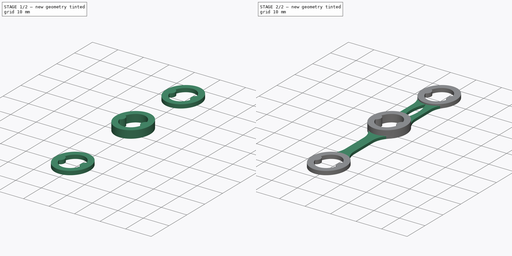
[diagram: build sequence overview — one tinted view per stage of 2, left to right]
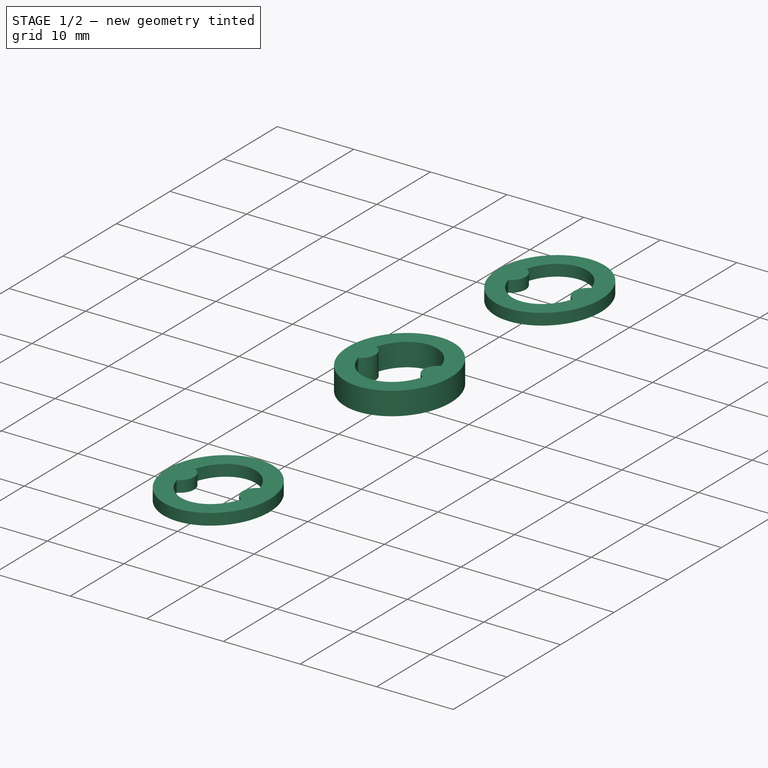
[diagram: stage 1 of 2 — iso view after this stage's code; geometry added in this stage tinted green]
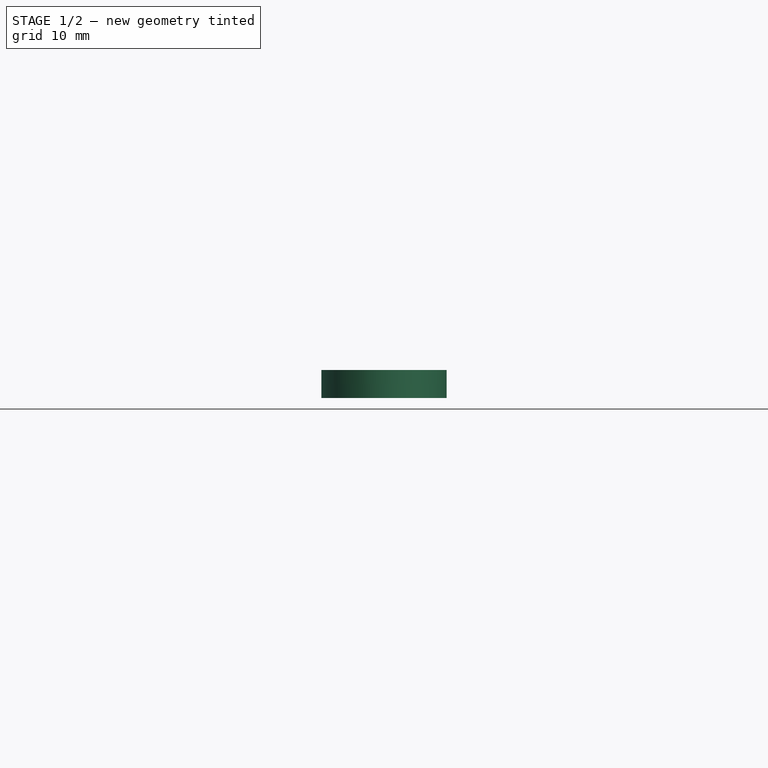
[diagram: stage 1 of 2 — front view after this stage's code; geometry added in this stage tinted green]
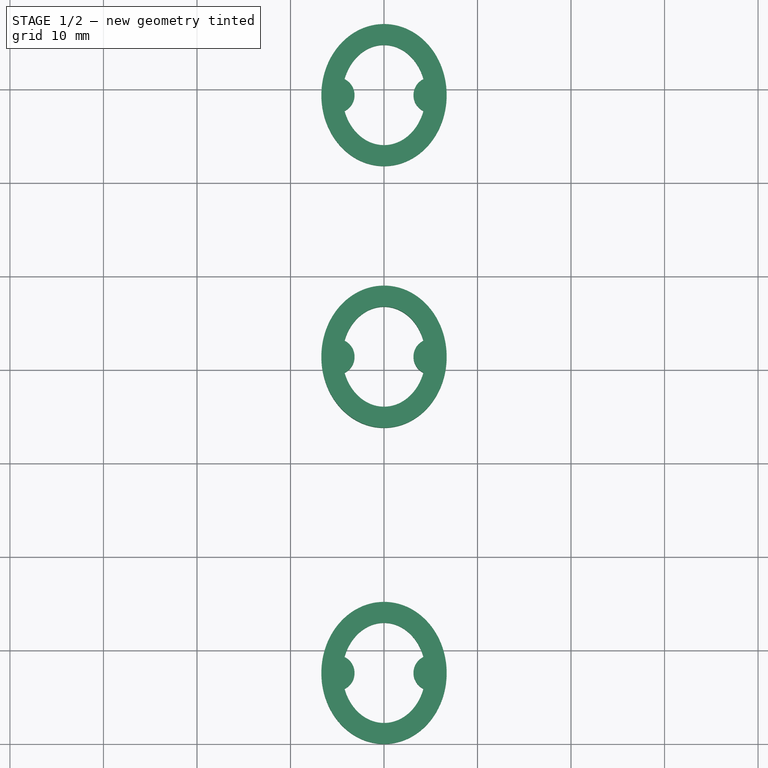
[diagram: stage 1 of 2 — top view after this stage's code; geometry added in this stage tinted green]
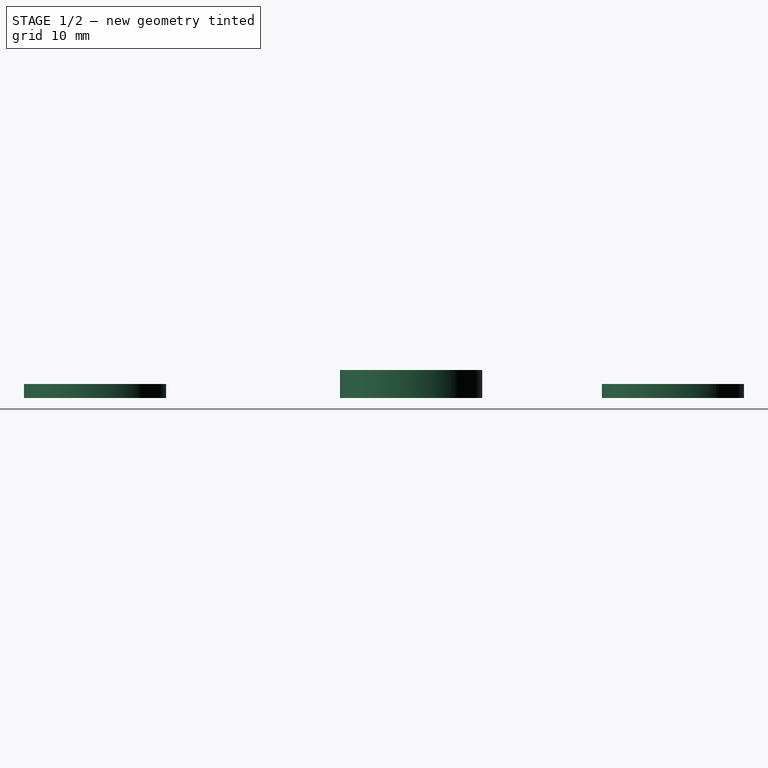
[diagram: stage 1 of 2 — right view after this stage's code; geometry added in this stage tinted green]
FCSTD DOCUMENT  (FreeCAD 1.0RUnknown)
Label: flip-stop-v2
License: All rights reserved
LicenseURL: https://en.wikipedia.org/wiki/All_rights_reserved
objects: PartDesign::Pad×3, App::VarSet×3, Sketcher::SketchObject×1, PartDesign::Body×1
note: 12 computed .brp shape members not serialized (recipe doc carries the construction recipe); baked Part::Feature solids carry a one-line shape summary decoded from their .brp

FEATURE [Sketcher::SketchObject] Sketch
  ArcFitTolerance = 1e-06
  AttachmentSupport = -> [XY_Plane]
  FullyConstrained = true
  MakeInternals = false
  MapMode = 5
  expr: Constraints[71] = VarSet.DoubleBandLength
  expr: Constraints[89] = VarSet.SingleBandLength
  sketch-geometry (94):
    g0: ArcOfEllipse CenterX=0 CenterY=69.4 CenterZ=0 NormalX=0 NormalY=0 NormalZ=1 MajorRadius=5.35 MinorRadius=4.45 AngleXU=-1.5708 StartAngle=5.03728 EndAngle=7.52909
    g1: LineSegment [constr] StartX=0 StartY=64.05 StartZ=0 EndX=0 EndY=74.75 EndZ=0
    g2: LineSegment [constr] StartX=4.45 StartY=69.4 StartZ=0 EndX=-4.45 EndY=69.4 EndZ=0
    g3: GeomPoint [constr] X=0 Y=72.3698 Z=0
    g4: ArcOfEllipse CenterX=0 CenterY=41.4 CenterZ=0 NormalX=0 NormalY=0 NormalZ=1 MajorRadius=5.35 MinorRadius=4.45 AngleXU=-1.5708 StartAngle=5.03728 EndAngle=7.52909
    g5: LineSegment [constr] StartX=0 StartY=36.05 StartZ=0 EndX=0 EndY=46.75 EndZ=0
    g6: LineSegment [constr] StartX=4.45 StartY=41.4 StartZ=0 EndX=-4.45 EndY=41.4 EndZ=0
    g7: GeomPoint [constr] X=0 Y=38.4302 Z=0
    g8: GeomPoint [constr] X=0 Y=44.3698 Z=0
    g9: ArcOfEllipse CenterX=0 CenterY=7.6 CenterZ=0 NormalX=0 NormalY=0 NormalZ=1 MajorRadius=5.35 MinorRadius=4.45 AngleXU=-1.5708 StartAngle=5.03728 EndAngle=7.52909
    g10: LineSegment [constr] StartX=0 StartY=2.25 StartZ=0 EndX=0 EndY=12.95 EndZ=0
    g11: LineSegment [constr] StartX=4.45 StartY=7.6 StartZ=0 EndX=-4.45 EndY=7.6 EndZ=0
    g12: GeomPoint [constr] X=0 Y=4.63015 Z=0
    g13: GeomPoint [constr] X=0 Y=10.5698 Z=0
    g14: Ellipse [constr] CenterX=0 CenterY=7.6 CenterZ=0 NormalX=0 NormalY=0 NormalZ=1 MajorRadius=7.6 MinorRadius=6.7 AngleXU=-1.5708
    g15: LineSegment [constr] StartX=1e-16 StartY=-9e-16 StartZ=0 EndX=-1e-16 EndY=15.2 EndZ=0
    g16: LineSegment [constr] StartX=6.7 StartY=7.6 StartZ=0 EndX=-6.7 EndY=7.6 EndZ=0
    g17: GeomPoint [constr] X=0 Y=4.01252 Z=0
    g18: GeomPoint [constr] X=0 Y=11.1875 Z=0
    g19: LineSegment [constr] StartX=-4.45 StartY=7.6 StartZ=0 EndX=-6.7 EndY=7.6 EndZ=0
    g20: LineSegment [constr] StartX=0 StartY=2.25 StartZ=0 EndX=0 EndY=0 EndZ=0
    g21: Ellipse [constr] CenterX=0 CenterY=41.4 CenterZ=0 NormalX=0 NormalY=0 NormalZ=1 MajorRadius=7.6 MinorRadius=6.7 AngleXU=-1.5708
    g22: LineSegment [constr] StartX=0 StartY=33.8 StartZ=0 EndX=-1.8e-15 EndY=49 EndZ=0
    g23: LineSegment [constr] StartX=6.7 StartY=41.4 StartZ=0 EndX=-6.7 EndY=41.4 EndZ=0
    g24: GeomPoint [constr] X=0 Y=37.8125 Z=0
    g25: GeomPoint [constr] X=0 Y=44.9875 Z=0
    g26: Ellipse [constr] CenterX=0 CenterY=69.4 CenterZ=0 NormalX=0 NormalY=0 NormalZ=1 MajorRadius=7.6 MinorRadius=6.7 AngleXU=-1.5708
    g27: LineSegment [constr] StartX=0 StartY=61.8 StartZ=0 EndX=0 EndY=77 EndZ=0
    g28: LineSegment [constr] StartX=6.7 StartY=69.4 StartZ=0 EndX=-6.7 EndY=69.4 EndZ=0
    g29: GeomPoint [constr] X=0 Y=65.8125 Z=0
    g30: GeomPoint [constr] X=0 Y=72.9875 Z=0
    g31: ArcOfCircle CenterX=-10 CenterY=19.3926 CenterZ=0 NormalX=0 NormalY=0 NormalZ=1 AngleXU=0 Radius=8.25 StartAngle=5.4736 EndAngle=6.28319
    g32: ArcOfCircle CenterX=-10 CenterY=29.6074 CenterZ=0 NormalX=0 NormalY=0 NormalZ=1 AngleXU=0 Radius=8.25 StartAngle=0 EndAngle=0.809587
    g33: LineSegment StartX=-1.75 StartY=29.6074 StartZ=0 EndX=-1.75 EndY=19.3926 EndZ=0
    g34: ArcOfCircle CenterX=10 CenterY=29.6074 CenterZ=0 NormalX=0 NormalY=0 NormalZ=1 AngleXU=0 Radius=8.25 StartAngle=2.33201 EndAngle=3.14159
    g35: ArcOfCircle CenterX=10 CenterY=19.3926 CenterZ=0 NormalX=0 NormalY=0 NormalZ=1 AngleXU=0 Radius=8.25 StartAngle=3.14159 EndAngle=3.95118
    g36: LineSegment StartX=1.75 StartY=29.6074 StartZ=0 EndX=1.75 EndY=19.3926 EndZ=0
    g37: ArcOfCircle CenterX=13.9286 CenterY=55.4 CenterZ=0 NormalX=0 NormalY=0 NormalZ=1 AngleXU=0 Radius=15.3286 StartAngle=2.71088 EndAngle=3.57231
    g38: ArcOfCircle CenterX=-13.9286 CenterY=55.4 CenterZ=0 NormalX=0 NormalY=0 NormalZ=1 AngleXU=0 Radius=15.3286 StartAngle=5.85247 EndAngle=6.7139
    g39: ArcOfCircle CenterX=-11.75 CenterY=59.5882 CenterZ=0 NormalX=0 NormalY=0 NormalZ=1 AngleXU=0 Radius=8.25 StartAngle=-9e-16 EndAngle=0.638506
    g40: ArcOfCircle CenterX=-11.75 CenterY=51.2118 CenterZ=0 NormalX=0 NormalY=0 NormalZ=1 AngleXU=0 Radius=8.25 StartAngle=5.64468 EndAngle=6.28319
    g41: LineSegment StartX=-3.5 StartY=59.5882 StartZ=0 EndX=-3.5 EndY=51.2118 EndZ=0
    g42: ArcOfCircle CenterX=11.75 CenterY=59.5882 CenterZ=0 NormalX=0 NormalY=0 NormalZ=1 AngleXU=0 Radius=8.25 StartAngle=2.50309 EndAngle=3.14159
    g43: ArcOfCircle CenterX=11.75 CenterY=51.2118 CenterZ=0 NormalX=0 NormalY=0 NormalZ=1 AngleXU=0 Radius=8.25 StartAngle=3.14159 EndAngle=3.7801
    g44: LineSegment StartX=3.5 StartY=59.5882 StartZ=0 EndX=3.5 EndY=51.2118 EndZ=0
    g45: ArcOfCircle CenterX=5.05 CenterY=69.4 CenterZ=0 NormalX=0 NormalY=0 NormalZ=1 AngleXU=0 Radius=1.9 StartAngle=2.02452 EndAngle=4.25866
    g46: ArcOfCircle CenterX=-5.05 CenterY=7.6 CenterZ=0 NormalX=0 NormalY=0 NormalZ=1 AngleXU=0 Radius=1.9 StartAngle=5.16611 EndAngle=7.40026
    g47: ArcOfCircle CenterX=5.05 CenterY=7.6 CenterZ=0 NormalX=0 NormalY=0 NormalZ=1 AngleXU=0 Radius=1.9 StartAngle=2.02452 EndAngle=4.25866
    g48: ArcOfCircle CenterX=5.05 CenterY=41.4 CenterZ=0 NormalX=0 NormalY=0 NormalZ=1 AngleXU=0 Radius=1.9 StartAngle=2.02452 EndAngle=4.25866
    g49: ArcOfCircle CenterX=-5.05 CenterY=41.4 CenterZ=0 NormalX=0 NormalY=0 NormalZ=1 AngleXU=0 Radius=1.9 StartAngle=5.16611 EndAngle=7.40026
    g50: ArcOfCircle CenterX=-5.05 CenterY=69.4 CenterZ=0 NormalX=0 NormalY=0 NormalZ=1 AngleXU=0 Radius=1.9 StartAngle=5.16611 EndAngle=7.40026
    g51: ArcOfEllipse CenterX=0 CenterY=7.6 CenterZ=0 NormalX=0 NormalY=0 NormalZ=1 MajorRadius=5.35 MinorRadius=4.45 AngleXU=-1.5708 StartAngle=1.89569 EndAngle=4.3875
    g52: ArcOfEllipse CenterX=0 CenterY=41.4 CenterZ=0 NormalX=0 NormalY=0 NormalZ=1 MajorRadius=5.35 MinorRadius=4.45 AngleXU=-1.5708 StartAngle=1.89569 EndAngle=4.3875
    g53: ArcOfEllipse CenterX=0 CenterY=69.4 CenterZ=0 NormalX=0 NormalY=0 NormalZ=1 MajorRadius=5.35 MinorRadius=4.45 AngleXU=-1.5708 StartAngle=1.89569 EndAngle=4.3875
    g54: ArcOfEllipse CenterX=0 CenterY=69.4 CenterZ=0 NormalX=0 NormalY=0 NormalZ=1 MajorRadius=7.6 MinorRadius=6.7 AngleXU=1.5708 StartAngle=2.27058 EndAngle=4.0126
    g55: LineSegment [constr] StartX=-1.4e-14 StartY=77 StartZ=0 EndX=1.4e-14 EndY=61.8 EndZ=0
    g56: LineSegment [constr] StartX=-6.7 StartY=69.4 StartZ=0 EndX=6.7 EndY=69.4 EndZ=0
    g57: GeomPoint [constr] X=-6.6e-15 Y=72.9875 Z=0
    g58: GeomPoint [constr] X=6.6e-15 Y=65.8125 Z=0
    g59: ArcOfEllipse CenterX=0 CenterY=69.4 CenterZ=0 NormalX=0 NormalY=0 NormalZ=1 MajorRadius=7.6 MinorRadius=6.7 AngleXU=1.5708 StartAngle=4.0126 EndAngle=8.55377
    g60: LineSegment [constr] StartX=-2.64e-14 StartY=77 StartZ=0 EndX=2.64e-14 EndY=61.8 EndZ=0
    g61: LineSegment [constr] StartX=-6.7 StartY=69.4 StartZ=0 EndX=6.7 EndY=69.4 EndZ=0
    g62: GeomPoint [constr] X=-1.25e-14 Y=72.9875 Z=0
    g63: GeomPoint [constr] X=1.25e-14 Y=65.8125 Z=0
    g64: ArcOfEllipse CenterX=0 CenterY=41.4 CenterZ=0 NormalX=0 NormalY=0 NormalZ=1 MajorRadius=7.6 MinorRadius=6.7 AngleXU=1.5708 StartAngle=5.41218 EndAngle=7.15419
    g65: LineSegment [constr] StartX=-1.24e-14 StartY=49 StartZ=0 EndX=1.24e-14 EndY=33.8 EndZ=0
    g66: LineSegment [constr] StartX=-6.7 StartY=41.4 StartZ=0 EndX=6.7 EndY=41.4 EndZ=0
    g67: GeomPoint [constr] X=-5.9e-15 Y=44.9875 Z=0
    g68: GeomPoint [constr] X=5.9e-15 Y=37.8125 Z=0
    g69: ArcOfEllipse CenterX=0 CenterY=7.6 CenterZ=0 NormalX=0 NormalY=0 NormalZ=1 MajorRadius=7.6 MinorRadius=6.7 AngleXU=1.5708 StartAngle=0.698618 EndAngle=5.58457
    g70: LineSegment [constr] StartX=-2.3e-15 StartY=15.2 StartZ=0 EndX=2.3e-15 EndY=0 EndZ=0
    g71: LineSegment [constr] StartX=-6.7 StartY=7.6 StartZ=0 EndX=6.7 EndY=7.6 EndZ=0
    g72: GeomPoint [constr] X=-1.1e-15 Y=11.1875 Z=0
    g73: GeomPoint [constr] X=1.1e-15 Y=4.01252 Z=0
    g74: ArcOfEllipse CenterX=0 CenterY=41.4 CenterZ=0 NormalX=0 NormalY=0 NormalZ=1 MajorRadius=7.6 MinorRadius=6.7 AngleXU=1.5708 StartAngle=0.871008 EndAngle=2.44297
    g75: LineSegment [constr] StartX=1.65e-14 StartY=49 StartZ=0 EndX=-1.65e-14 EndY=33.8 EndZ=0
    g76: LineSegment [constr] StartX=-6.7 StartY=41.4 StartZ=0 EndX=6.7 EndY=41.4 EndZ=0
    g77: GeomPoint [constr] X=7.8e-15 Y=44.9875 Z=0
    g78: GeomPoint [constr] X=-7.8e-15 Y=37.8125 Z=0
    g79: ArcOfEllipse CenterX=0 CenterY=41.4 CenterZ=0 NormalX=0 NormalY=0 NormalZ=1 MajorRadius=7.6 MinorRadius=6.7 AngleXU=-1.5708 StartAngle=0.698615 EndAngle=2.27058
    g80: LineSegment [constr] StartX=-3e-16 StartY=33.8 StartZ=0 EndX=3e-16 EndY=49 EndZ=0
    g81: LineSegment [constr] StartX=6.7 StartY=41.4 StartZ=0 EndX=-6.7 EndY=41.4 EndZ=0
    g82: GeomPoint [constr] X=-1e-16 Y=37.8125 Z=0
    g83: GeomPoint [constr] X=1e-16 Y=44.9875 Z=0
    g84: ArcOfEllipse CenterX=0 CenterY=41.4 CenterZ=0 NormalX=0 NormalY=0 NormalZ=1 MajorRadius=7.6 MinorRadius=6.7 AngleXU=1.5708 StartAngle=2.44297 EndAngle=3.84021
    g85: LineSegment [constr] StartX=2.34e-14 StartY=49 StartZ=0 EndX=-2.34e-14 EndY=33.8 EndZ=0
    g86: LineSegment [constr] StartX=-6.7 StartY=41.4 StartZ=0 EndX=6.7 EndY=41.4 EndZ=0
    g87: GeomPoint [constr] X=1.1e-14 Y=44.9875 Z=0
    g88: GeomPoint [constr] X=-1.1e-14 Y=37.8125 Z=0
    g89: ArcOfEllipse CenterX=0 CenterY=7.6 CenterZ=0 NormalX=0 NormalY=0 NormalZ=1 MajorRadius=7.6 MinorRadius=6.7 AngleXU=1.5708 StartAngle=5.58457 EndAngle=6.9818
    g90: LineSegment [constr] StartX=4.7e-15 StartY=15.2 StartZ=0 EndX=-4.7e-15 EndY=-1.8e-15 EndZ=0
    g91: LineSegment [constr] StartX=-6.7 StartY=7.6 StartZ=0 EndX=6.7 EndY=7.6 EndZ=0
    g92: GeomPoint [constr] X=2.2e-15 Y=11.1875 Z=0
    g93: GeomPoint [constr] X=-2.2e-15 Y=4.01252 Z=0
  constraints (158):
    c: InternalAlignment(g1,g0)
    c: InternalAlignment(g2,g0)
    c: InternalAlignment(g3,g0)
    c: InternalAlignment(g5-g8 -> g4) x4
    c: InternalAlignment(g10-g13 -> g9) x4
    c: Distance(g11,g11) = 8.9
    c: DistanceY(g10,g10) = 10.7
    c: Equal(g0,g9)
    c: PointOnObject(g4,g-2)
    c: PointOnObject(g9,g-2)
    c: Equal(g9,g4)
    c: PointOnObject(g13,g-2)
    c: PointOnObject(g8,g-2)
    c: PointOnObject(g3,g-2)
    c: InternalAlignment(g15-g18 -> g14) x4
    c: PointOnObject(g-1,g14)
    c: Coincident(g14,g9)
    c: Coincident(g19,g11)
    c: Coincident(g19,g16)
    c: Horizontal(g19)
    c: Distance(g19,g19) = 2.25
    c: Coincident(g20,g10)
    c: Coincident(g20,g-1)
    c: Equal(g20,g19)
    c: InternalAlignment(g22-g25 -> g21) x4
    c: Equal(g21,g14)
    c: Coincident(g21,g4)
    c: PointOnObject(g22,g-2)
    c: InternalAlignment(g27-g30 -> g26) x4
    c: Equal(g14,g26)
    c: PointOnObject(g27,g-2)
    c: PointOnObject(g0,g-2)
    c: Coincident(g26,g0)
    c: Vertical(g33)
    c: Equal(g32,g31)
    c: PointOnObject(g34,g21)
    c: PointOnObject(g35,g14)
    c: Tangent(g33,g31) = 1.5708
    c: Tangent(g33,g32) = 1.5708
    c: Coincident(g36,g34)
    c: Equal(g32,g34)
    c: Equal(g31,g35)
    c: Equal(g33,g36)
    c: Tangent(g34,g36,g34) = -1.5708
    c: Tangent(g36,g35) = -1.5708
    c: Vertical(g36)
    c: Horizontal(g33,g34)
    c: Horizontal(g31,g35)
    c: Radius(g31) = 8.25
    c: Tangent(g31,g14) = 1.5708
    c: Tangent(g32,g21) = 1.5708
    c: Coincident(g37,g27)
    c: Coincident(g37,g22)
    c: Coincident(g38,g27)
    c: Coincident(g38,g22)
    c: Equal(g37,g38)
    c: DistanceY(g22,g27) = 12.8
    c: Vertical(g41)
    c: Tangent(g39,g26) = 1.5708
    c: Tangent(g40,g21) = 1.5708
    c: Tangent(g41,g39) = 1.5708
    c: Equal(g39,g40)
    c: Tangent(g41,g40) = 1.5708
    c: Equal(g40,g31)
    c: Distance(g37,g41) = 2.1
    c: DistanceY(g20,g27) = 77  'total length'
    c: Vertical(g44)
    c: Equal(g42,g39)
    c: Tangent(g42,g26) = 1.5708
    c: Tangent(g43,g21) = 1.5708
    c: Tangent(g44,g42) = -1.5708
    c: Tangent(g44,g43) = -1.5708
    c: Symmetric(g43,g40,g-2)
    c: Distance(g-2,g41) = 3.5
    c: DistanceY(g15,g22) = 18.6
    c: Distance(g34,g32) = 3.5
    c: PointOnObject(g45,g53)
    c: PointOnObject(g45,g28)
    c: Radius(g46) = 1.9
    c: Symmetric(g46,g46,g11)
    c: Distance(g11,g46) = 1.3
    c: PointOnObject(g48,g52)
    c: Equal(g46,g47)
    c: PointOnObject(g47,g16)
    c: PointOnObject(g48,g23)
    c: PointOnObject(g49,g23)
    c: Equal(g49,g46)
    c: Equal(g48,g49)
    c: Vertical(g46,g49)
    c: Vertical(g50,g46)
    c: Equal(g50,g46)
    c: PointOnObject(g50,g28)
    c: Equal(g50,g45)
    c: Horizontal(g45,g50)
    c: Horizontal(g47,g46)
    c: PointOnObject(g47,g51)
    c: Horizontal(g49,g48)
    c: Coincident(g51,g46)
    c: PointOnObject(g9,g46)
    c: Equal(g9,g51)
    c: PointOnObject(g51,g47)
    c: Coincident(g9,g51)
    c: Coincident(g9,g47)
    c: Vertical(g47,g9)
    c: Coincident(g52,g49)
    c: Coincident(g4,g49)
    c: Equal(g4,g52)
    c: PointOnObject(g52,g48)
    c: Coincident(g4,g52)
    c: Coincident(g4,g48)
    c: Vertical(g48,g4)
    c: Coincident(g53,g50)
    c: Coincident(g0,g50)
    c: Equal(g0,g53)
    c: PointOnObject(g53,g45)
    c: Coincident(g0,g53)
    c: Coincident(g0,g45)
    c: Vertical(g45,g0)
    c: InternalAlignment(g55-g58 -> g54) x4
    c: Coincident(g54,g0)
    c: PointOnObject(g28,g54)
    c: Coincident(g54,g39)
    c: Coincident(g54,g42)
    c: InternalAlignment(g60-g63 -> g59) x4
    c: Coincident(g59,g0)
    c: PointOnObject(g28,g59)
    c: Coincident(g59,g39)
    c: Coincident(g59,g42)
    c: InternalAlignment(g65-g68 -> g64) x4
    c: Coincident(g64,g4)
    c: PointOnObject(g23,g64)
    c: Coincident(g64,g40)
    c: Coincident(g64,g43)
    c: InternalAlignment(g70-g73 -> g69) x4
    c: Coincident(g69,g9)
    c: PointOnObject(g16,g69)
    c: Coincident(g69,g31)
    c: Coincident(g69,g35)
    c: InternalAlignment(g75-g78 -> g74) x4
    c: Coincident(g74,g4)
    c: PointOnObject(g23,g74)
    c: Coincident(g74,g40)
    c: Coincident(g74,g32)
    c: InternalAlignment(g80-g83 -> g79) x4
    c: Coincident(g79,g4)
    c: PointOnObject(g23,g79)
    c: Coincident(g79,g43)
    c: Coincident(g79,g34)
    c: InternalAlignment(g85-g88 -> g84) x4
    c: Coincident(g84,g4)
    c: PointOnObject(g23,g84)
    c: Coincident(g84,g32)
    c: Coincident(g84,g34)
    c: InternalAlignment(g90-g93 -> g89) x4
    c: Coincident(g89,g9)
    c: PointOnObject(g16,g89)
    c: Coincident(g89,g31)
    c: Coincident(g89,g35)
FEATURE [PartDesign::Pad] Pad  label="top-bottom-ellipses"
  Direction = (0,0,1)
  Length = 1.5
  Length2 = 10
  Profile = -> Sketch [Edge21,Edge20,Edge3,Edge2,Edge1,Edge4,Edge32,Edge31,Edge11,Edge9,Edge10,Edge12]
  ReferenceAxis = -> Sketch [N_Axis]
  Refine = true
  Suppressed = false
  Type = 0
FEATURE [PartDesign::Pad] Pad001  label="middle-ellipse"
  BaseFeature = -> Pad
  Direction = (0,0,1)
  Length = 3
  Length2 = 10
  Profile = -> Sketch [Edge16,Edge17,Edge7,Edge6,Edge5,Edge27,Edge26,Vertex5,Edge8]
  ReferenceAxis = -> Sketch [N_Axis]
  Refine = true
  Suppressed = false
  Type = 0
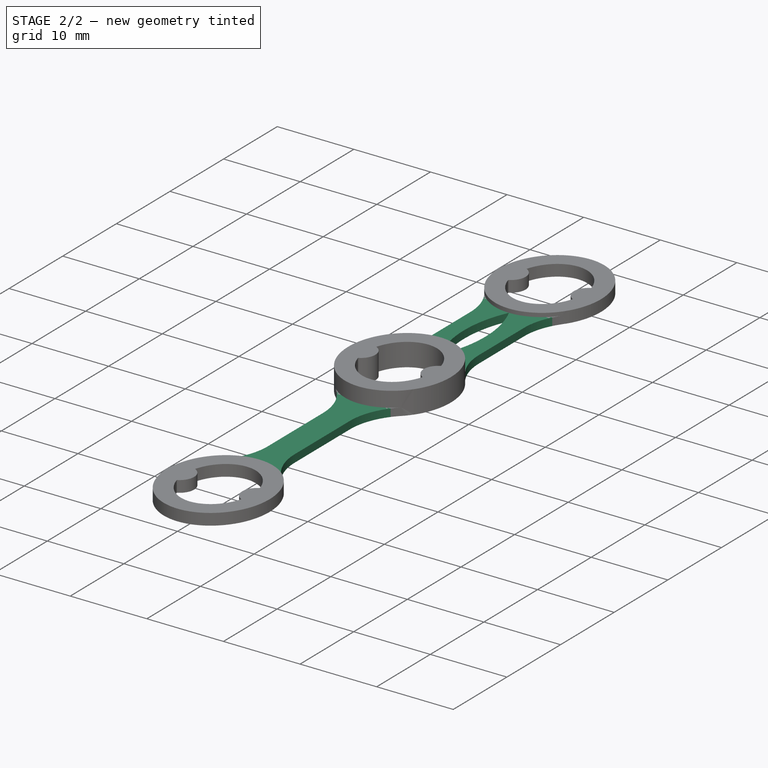
[diagram: stage 2 of 2 — iso view after this stage's code; geometry added in this stage tinted green]
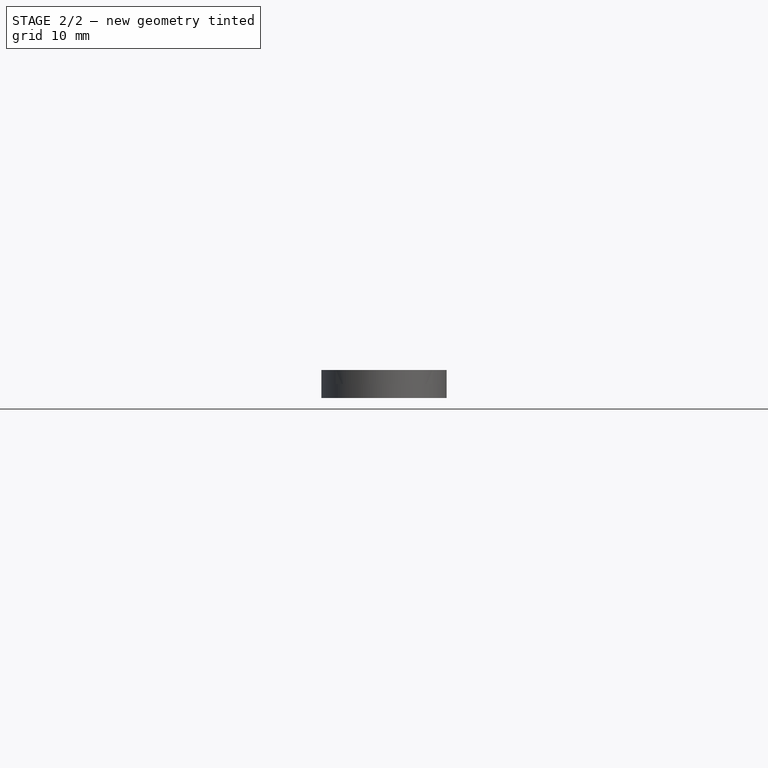
[diagram: stage 2 of 2 — front view after this stage's code; geometry added in this stage tinted green]
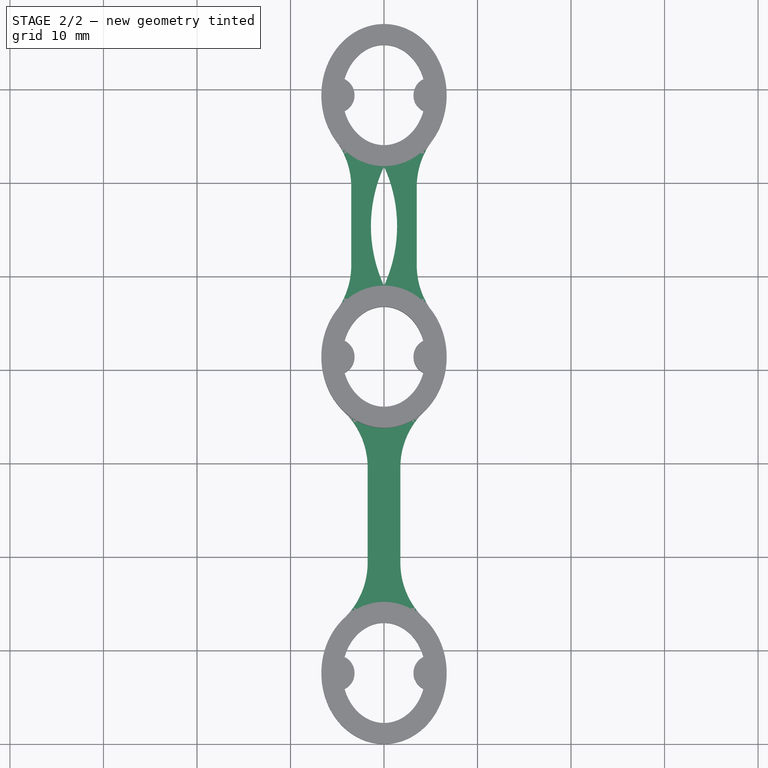
[diagram: stage 2 of 2 — top view after this stage's code; geometry added in this stage tinted green]
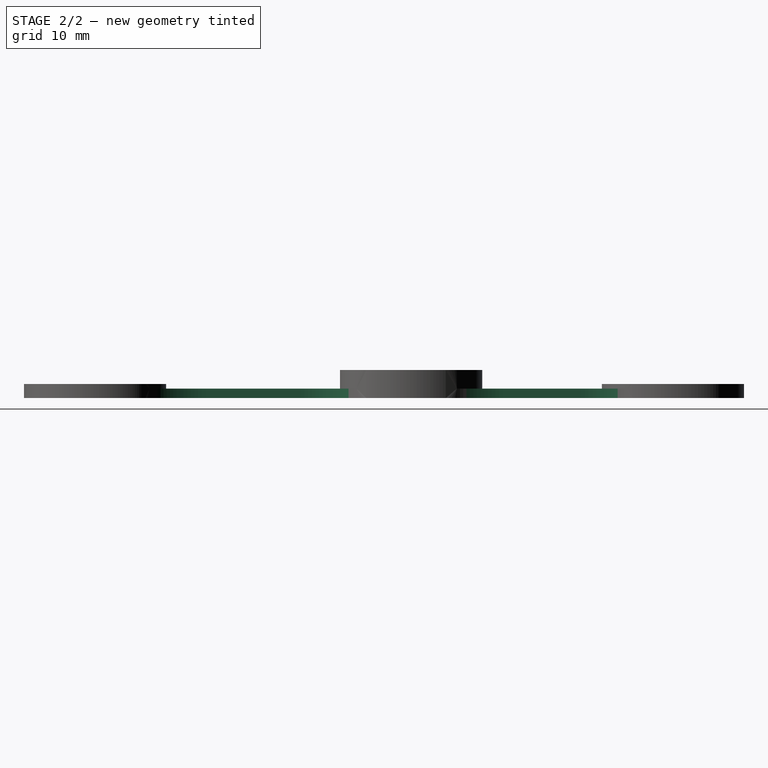
[diagram: stage 2 of 2 — right view after this stage's code; geometry added in this stage tinted green]
FEATURE [PartDesign::Pad] Pad002  label="connections"
  BaseFeature = -> Pad001
  Direction = (0,0,1)
  Length = 1
  Length2 = 10
  Profile = -> Sketch [Edge31,Edge30,Edge28,Edge15,Edge13,Edge14,Edge29,Edge22,Edge21,Edge19,Edge18,Edge25,Edge17,Edge24,Edge23,Edge34,Edge33,Edge27]
  ReferenceAxis = -> Sketch [N_Axis]
  Refine = true
  Suppressed = false
  Type = 0
FEATURE [App::VarSet] VarSet
  DoubleBandLength = 12.8
  SingleBandLength = 18.6
FEATURE [PartDesign::Body] Body
  AllowCompound = true
  Group = -> [Sketch,Pad,Pad001,Pad002,VarSet]
  Origin = -> Origin
  Tip = -> Pad002
FEATURE [App::VarSet] VarSet001  label="dyneema width slings"
  DoubleBandLength = 9.3
  SingleBandLength = 15.1
FEATURE [App::VarSet] VarSet002  label="nylon width slings"
  DoubleBandLength = 12.8
  SingleBandLength = 18.6
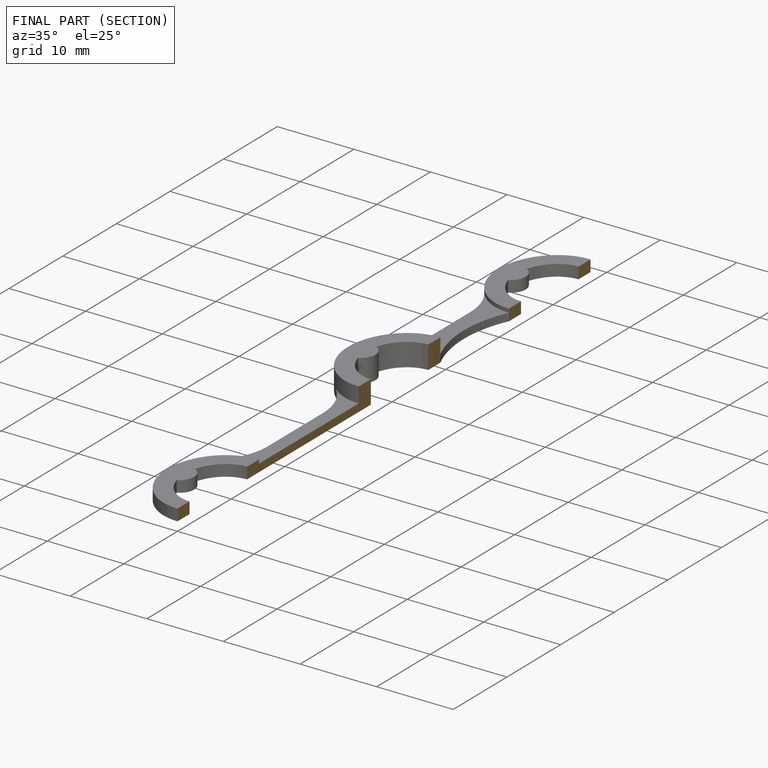
[diagram: finished part — half-section view (interior)]
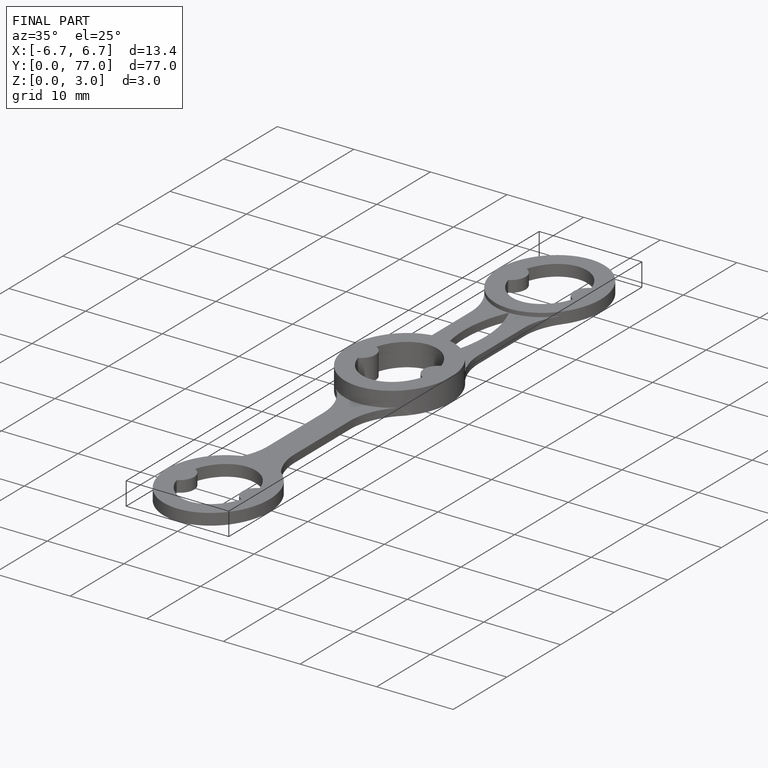
[diagram: finished part — iso view with bounding-box wireframe]
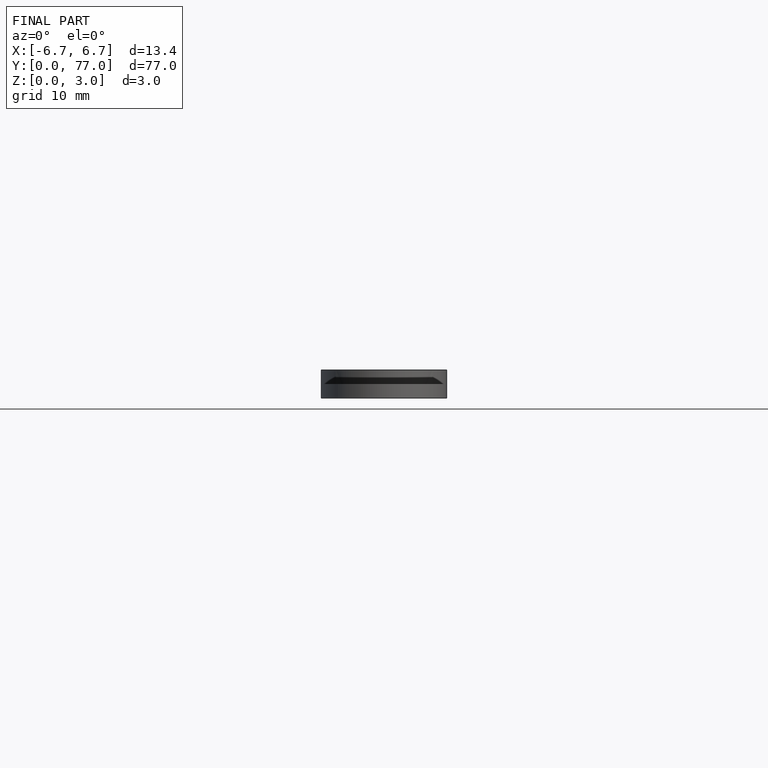
[diagram: finished part — front view with bounding-box wireframe]
